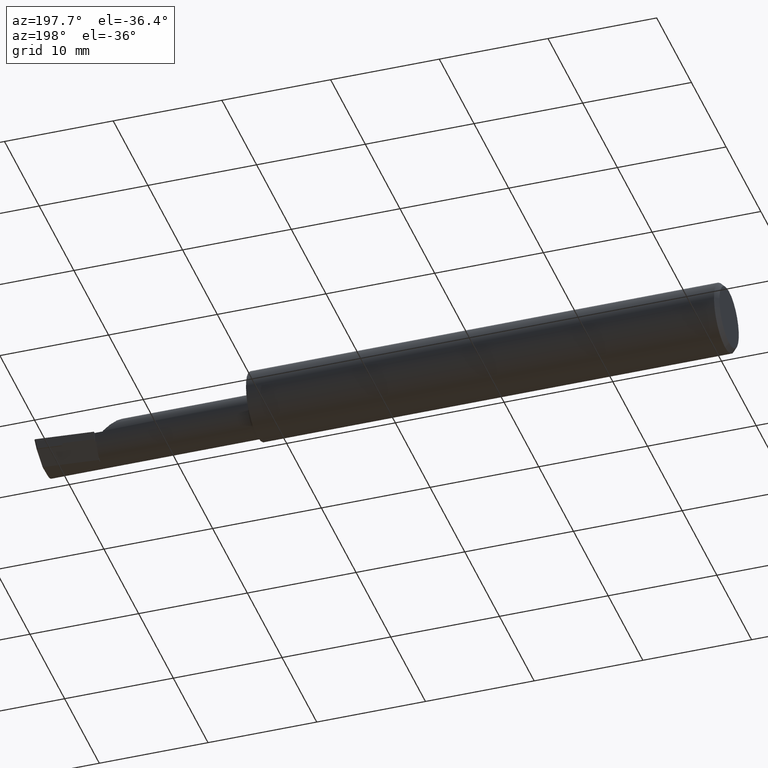
[diagram: clean part render]
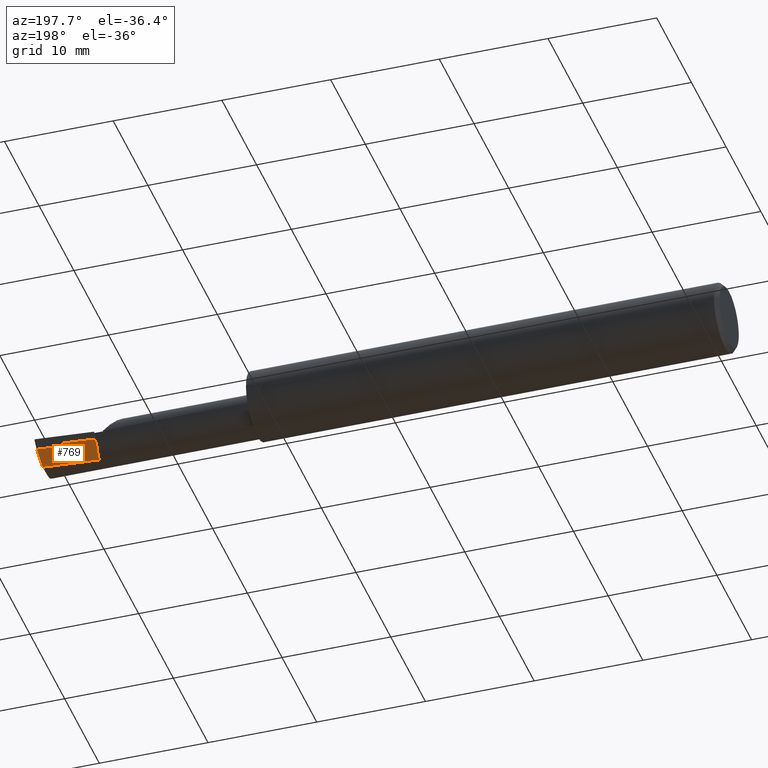
[diagram: same view with one face highlighted and labeled with its STEP entity id]
A machine part, auxiliary view. The second image highlights one B-rep face of the part: STEP entity #769.
In plain terms, the highlighted planar face has unit normal (0.0689, -0.716, 0.6947).
Its self-contained STEP definition (entity closure, byte-faithful):
#7 = VECTOR ( 'NONE', #153, 39.37007874015748143 ) ;
#29 = CARTESIAN_POINT ( 'NONE',  ( 2.466824470281169468, -0.1522006282143079925, -0.2260695605366079275 ) ) ;
#47 = EDGE_CURVE ( 'NONE', #1168, #190, #254, .T. ) ;
#63 = VECTOR ( 'NONE', #1243, 39.37007874015748854 ) ;
#102 = EDGE_CURVE ( 'NONE', #554, #910, #449, .T. ) ;
#108 = EDGE_CURVE ( 'NONE', #1059, #554, #531, .T. ) ;
#120 = EDGE_CURVE ( 'NONE', #910, #1257, #914, .T. ) ;
#129 = VECTOR ( 'NONE', #739, 39.37007874015748143 ) ;
#135 = CARTESIAN_POINT ( 'NONE',  ( 2.290000000000000036, 0.03800063496911013083, -0.01246711004037342509 ) ) ;
#153 = DIRECTION ( 'NONE',  ( -0.06658005426111555936, 0.6914603011188269477, 0.7193398003386494155 ) ) ;
#190 = VERTEX_POINT ( 'NONE', #390 ) ;
#199 = ORIENTED_EDGE ( 'NONE', *, *, #1147, .T. ) ;
#203 = VERTEX_POINT ( 'NONE', #1183 ) ;
#216 = VERTEX_POINT ( 'NONE', #976 ) ;
#235 = VECTOR ( 'NONE', #306, 39.37007874015748143 ) ;
#254 = LINE ( 'NONE', #1120, #63 ) ;
#261 = PLANE ( 'NONE',  #817 ) ;
#274 = DIRECTION ( 'NONE',  ( 0.000000000000000000, -0.6963153109074986524, -0.7177360153954889244 ) ) ;
#277 = VECTOR ( 'NONE', #359, 39.37007874015748143 ) ;
#306 = DIRECTION ( 'NONE',  ( 0.9953961983671787417, 0.09584575252022463354, -0.000000000000000000 ) ) ;
#317 = CARTESIAN_POINT ( 'NONE',  ( 2.290000000000000480, -0.01839387631621007893, -0.07059648215966424223 ) ) ;
#329 = CARTESIAN_POINT ( 'NONE',  ( 2.287167223447292841, 0.01803548479585101449, -0.03276529046169187470 ) ) ;
#335 = CARTESIAN_POINT ( 'NONE',  ( 2.402354631377179750, 0.03579536862282067800, -0.02589154684564919096 ) ) ;
#341 = DIRECTION ( 'NONE',  ( 0.000000000000000000, 0.6963153109074986524, 0.7177360153954889244 ) ) ;
#345 = EDGE_LOOP ( 'NONE', ( #988, #596, #985, #874, #682, #1182, #858, #445, #1146, #199, #1067 ) ) ;
#355 = CARTESIAN_POINT ( 'NONE',  ( 2.290000000000000036, -0.02632389144097145930, -0.07877044784520161047 ) ) ;
#359 = DIRECTION ( 'NONE',  ( 0.000000000000000000, 0.6963153109074986524, 0.7177360153954889244 ) ) ;
#360 = VECTOR ( 'NONE', #341, 39.37007874015748143 ) ;
#371 = DIRECTION ( 'NONE',  ( 0.06894566448120600932, -0.7160281025912971220, 0.6946583704589990305 ) ) ;
#390 = CARTESIAN_POINT ( 'NONE',  ( 2.290000000000000036, 0.02497684810692663016, -0.02589154684564922565 ) ) ;
#423 = VERTEX_POINT ( 'NONE', #504 ) ;
#425 = CARTESIAN_POINT ( 'NONE',  ( 2.285716982925383611, 0.01815694157993221966, -0.03249615922388707917 ) ) ;
#429 = DIRECTION ( 'NONE',  ( 0.1054163440777198535, 0.6976459289133478681, 0.7086448703489778289 ) ) ;
#434 = LINE ( 'NONE', #843, #360 ) ;
#445 = ORIENTED_EDGE ( 'NONE', *, *, #120, .T. ) ;
#449 = LINE ( 'NONE', #135, #277 ) ;
#462 = VECTOR ( 'NONE', #864, 39.37007874015748143 ) ;
#469 = CARTESIAN_POINT ( 'NONE',  ( 2.297673721434291494, -0.1060185356184528416, -0.1616783593159390742 ) ) ;
#475 = LINE ( 'NONE', #469, #462 ) ;
#504 = CARTESIAN_POINT ( 'NONE',  ( 2.488702192177683514, -0.007413747692739735412, -0.07900000000000001465 ) ) ;
#526 = LINE ( 'NONE', #649, #129 ) ;
#531 = LINE ( 'NONE', #1044, #7 ) ;
#554 = VERTEX_POINT ( 'NONE', #355 ) ;
#561 = EDGE_CURVE ( 'NONE', #203, #1157, #526, .T. ) ;
#596 = ORIENTED_EDGE ( 'NONE', *, *, #1174, .T. ) ;
#614 =( BOUNDED_CURVE ( )  B_SPLINE_CURVE ( 3, ( #425, #329, #724, #1118 ),
 .UNSPECIFIED., .F., .T. ) 
 B_SPLINE_CURVE_WITH_KNOTS ( ( 4, 4 ),
 ( 2.795269658945859881, 2.806482320755506965 ),
 .UNSPECIFIED. ) 
 CURVE ( )  GEOMETRIC_REPRESENTATION_ITEM ( )  RATIONAL_B_SPLINE_CURVE ( ( 1.000000000000000000, 0.9999895230453701434, 0.9999895230453701434, 1.000000000000000000 ) ) 
 REPRESENTATION_ITEM ( '' )  );
#616 = CARTESIAN_POINT ( 'NONE',  ( 2.495465986398820668, -0.006762468384982378219, -0.07900000000000000078 ) ) ;
#634 = CARTESIAN_POINT ( 'NONE',  ( 2.290021246697200752, -0.02654454682804253951, -0.07900000000000000078 ) ) ;
#637 = CARTESIAN_POINT ( 'NONE',  ( 2.289750697494798093, -0.01844069244940093125, -0.07061999492627857311 ) ) ;
#649 = CARTESIAN_POINT ( 'NONE',  ( 2.285763617000402093, 0.01767262819340337590, -0.03299999999999999462 ) ) ;
#682 = ORIENTED_EDGE ( 'NONE', *, *, #786, .F. ) ;
#724 = CARTESIAN_POINT ( 'NONE',  ( 2.288594910763313450, 0.01791252108964366471, -0.03303373654662777881 ) ) ;
#739 = DIRECTION ( 'NONE',  ( -0.9953961983671787417, -0.09584575252022463354, 0.000000000000000000 ) ) ;
#744 = VERTEX_POINT ( 'NONE', #1283 ) ;
#757 = EDGE_CURVE ( 'NONE', #1257, #216, #475, .T. ) ;
#769 = ADVANCED_FACE ( 'NONE', ( #1144 ), #261, .F. ) ;
#786 = EDGE_CURVE ( 'NONE', #1059, #423, #1098, .T. ) ;
#817 = AXIS2_PLACEMENT_3D ( 'NONE', #1150, #371, #274 ) ;
#843 = CARTESIAN_POINT ( 'NONE',  ( 2.290000000000000036, 0.03800063496911013083, -0.01246711004037342509 ) ) ;
#846 = CARTESIAN_POINT ( 'NONE',  ( 2.290000000000000480, -0.01839387631621007893, -0.07059648215966424223 ) ) ;
#857 = VECTOR ( 'NONE', #429, 39.37007874015748854 ) ;
#858 = ORIENTED_EDGE ( 'NONE', *, *, #102, .T. ) ;
#864 = DIRECTION ( 'NONE',  ( -0.06658005426111555936, 0.6914603011188269477, 0.7193398003386494155 ) ) ;
#874 = ORIENTED_EDGE ( 'NONE', *, *, #1039, .F. ) ;
#910 = VERTEX_POINT ( 'NONE', #317 ) ;
#914 =( BOUNDED_CURVE ( )  B_SPLINE_CURVE ( 3, ( #846, #637, #1031, #931 ),
 .UNSPECIFIED., .F., .F. ) 
 B_SPLINE_CURVE_WITH_KNOTS ( ( 4, 4 ),
 ( 3.476702986424079711, 3.478692439327600638 ),
 .UNSPECIFIED. ) 
 CURVE ( )  GEOMETRIC_REPRESENTATION_ITEM ( )  RATIONAL_B_SPLINE_CURVE ( ( 1.000000000000000000, 0.9999996701731224125, 0.9999996701731224125, 1.000000000000000000 ) ) 
 REPRESENTATION_ITEM ( '' )  );
#925 = CARTESIAN_POINT ( 'NONE',  ( 2.408645219281920991, 0.02950478071807941666, -0.03299999999999999462 ) ) ;
#931 = CARTESIAN_POINT ( 'NONE',  ( 2.289249956779253470, -0.01853439476625176260, -0.07066688069367470237 ) ) ;
#950 = CARTESIAN_POINT ( 'NONE',  ( 2.289249956779253470, -0.01853439476625176260, -0.07066688069367470237 ) ) ;
#965 = CARTESIAN_POINT ( 'NONE',  ( 2.460510862526168463, -0.02236086252616861780, -0.09160890919974723490 ) ) ;
#976 = CARTESIAN_POINT ( 'NONE',  ( 2.285716982925383611, 0.01815694157993221966, -0.03249615922388707917 ) ) ;
#985 = ORIENTED_EDGE ( 'NONE', *, *, #561, .F. ) ;
#988 = ORIENTED_EDGE ( 'NONE', *, *, #47, .F. ) ;
#1031 = CARTESIAN_POINT ( 'NONE',  ( 2.289500683005420978, -0.01848753194819706749, -0.07064346111202182699 ) ) ;
#1039 = EDGE_CURVE ( 'NONE', #423, #203, #1228, .T. ) ;
#1044 = CARTESIAN_POINT ( 'NONE',  ( 2.297673721434291494, -0.1060185356184528416, -0.1616783593159390742 ) ) ;
#1048 = EDGE_CURVE ( 'NONE', #744, #190, #434, .T. ) ;
#1059 = VERTEX_POINT ( 'NONE', #634 ) ;
#1063 = VECTOR ( 'NONE', #1255, 39.37007874015748854 ) ;
#1067 = ORIENTED_EDGE ( 'NONE', *, *, #1048, .T. ) ;
#1098 = LINE ( 'NONE', #616, #235 ) ;
#1118 = CARTESIAN_POINT ( 'NONE',  ( 2.290000000000000036, 0.01778805432616575866, -0.03330148904120239922 ) ) ;
#1120 = CARTESIAN_POINT ( 'NONE',  ( 2.280883032450030434, 0.02409898397909220058, -0.02589154684564922565 ) ) ;
#1144 = FACE_OUTER_BOUND ( 'NONE', #345, .T. ) ;
#1146 = ORIENTED_EDGE ( 'NONE', *, *, #757, .T. ) ;
#1147 = EDGE_CURVE ( 'NONE', #216, #744, #614, .T. ) ;
#1150 = CARTESIAN_POINT ( 'NONE',  ( 2.297673721434291494, -0.1060185356184528416, -0.1616783593159390742 ) ) ;
#1157 = VERTEX_POINT ( 'NONE', #925 ) ;
#1164 = LINE ( 'NONE', #965, #1063 ) ;
#1168 = VERTEX_POINT ( 'NONE', #335 ) ;
#1174 = EDGE_CURVE ( 'NONE', #1168, #1157, #1164, .T. ) ;
#1182 = ORIENTED_EDGE ( 'NONE', *, *, #108, .T. ) ;
#1183 = CARTESIAN_POINT ( 'NONE',  ( 2.495545043979019439, 0.03787228212669603578, -0.03300000000000001543 ) ) ;
#1228 = LINE ( 'NONE', #29, #857 ) ;
#1243 = DIRECTION ( 'NONE',  ( -0.9953961983671786307, -0.09584575252022466130, -5.308658149059700575E-18 ) ) ;
#1255 = DIRECTION ( 'NONE',  ( 0.5524160538717100000, -0.5524160538717178826, -0.6242379408924189077 ) ) ;
#1257 = VERTEX_POINT ( 'NONE', #950 ) ;
#1283 = CARTESIAN_POINT ( 'NONE',  ( 2.290000000000000036, 0.01778805432616575866, -0.03330148904120239922 ) ) ;